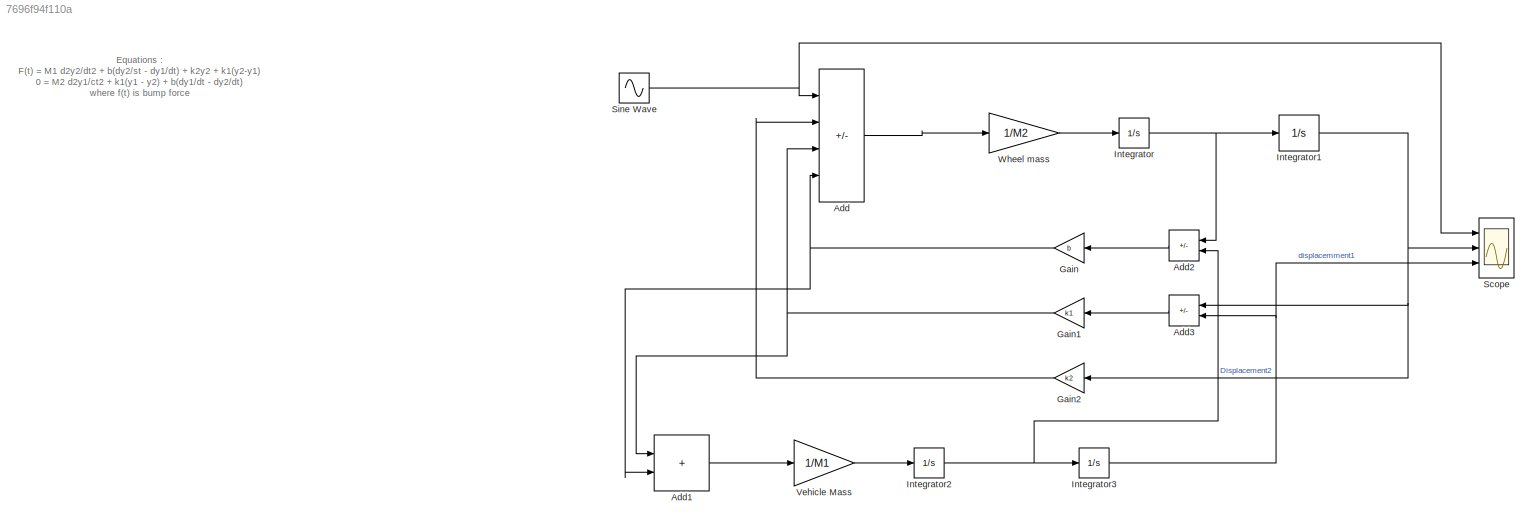
MODEL slx_7696f94f110a
KIND model
CONFIG AbsTol = auto
CONFIG EnableMultiTasking = off
CONFIG FixedStep = auto
CONFIG MaxStep = auto
CONFIG MinStep = auto
CONFIG RelTol = 1e-3
CONFIG SampleTimeConstraint = Unconstrained
CONFIG Solver = VariableStepAuto
CONFIG SolverName = VariableStepAuto
CONFIG StartTime = 0.0
CONFIG StopTime = 100
WORKSPACE source: mxarray member
WORKSPACE M1 = 100
WORKSPACE M2 = 50
WORKSPACE b = 20
WORKSPACE k1 = 500
WORKSPACE k2 = 250
BLOCK [Sum] Add
  IconShape = rectangular
  Inputs = +---
  Ports = [4, 1]
BLOCK [Sum] Add1
  IconShape = rectangular
  Ports = [2, 1]
BLOCK [Sum] Add2
  IconShape = rectangular
  Inputs = +-
  NameLocation = top
  Ports = [2, 1]
BLOCK [Sum] Add3
  IconShape = rectangular
  Inputs = +-
  NameLocation = top
  Ports = [2, 1]
BLOCK [Gain] Gain
  Gain = b
  NameLocation = top
BLOCK [Gain] Gain1
  Gain = k1
  NameLocation = top
BLOCK [Gain] Gain2
  Gain = k2
  NameLocation = top
BLOCK [Integrator] Integrator
  Ports = [1, 1]
BLOCK [Integrator] Integrator1
  Ports = [1, 1]
BLOCK [Integrator] Integrator2
  Ports = [1, 1]
BLOCK [Integrator] Integrator3
  Ports = [1, 1]
BLOCK [Scope] Scope
  Floating = off
  NumInputPorts = 3
  Ports = [3]
  ScopeSpecificationString = Simulink.scopes.TimeScopeBlockCfg('CurrentConfiguration', extmgr.ConfigurationSet(extmgr.Configuration('Core','General UI',true),extmgr.Configuration('Core','Source UI',true),extmgr.Configuration('Sources','WiredSimulink',true),extmgr.Configuration('Visuals','Time Domain',true,'SerializedDisplays',{struct('MinYLimReal','-1.24997','MaxYLimReal','1.24995','YLabelReal','','MinYLimMag','0.00000','MaxY...<+2721ch>
BLOCK [Sin] Sine Wave
  Ports = [0, 1]
  SampleTime = 0
BLOCK [Gain] Vehicle Mass
  Gain = 1/M1
BLOCK [Gain] Wheel mass
  Gain = 1/M2
ANNOTATION (root): Equations : F(t) = M1 d2y2/dt2 + b(dy2/st - dy1/dt) + k2y2 + k1(y2-y1) 0 = M2 d2y1/ct2 + k1(y1 - y2) + b(dy1/dt - dy2/dt) where f(t) is bump force
LINE Add1:1 -> Vehicle Mass:1
LINE Add2:1 -> Gain:1
LINE Add3:1 -> Gain1:1
LINE Add:1 -> Wheel mass:1
NET Gain1:1 -> Add1:1, Add:3
LINE Gain2:1 -> Add:2
NET Gain:1 -> Add1:2, Add:4
NET Integrator1:1 -> Add3:1, Gain2:1, Scope:2
NET Integrator2:1 -> Add2:2, Integrator3:1
NET Integrator3:1 -> Add3:2, Scope:3
NET Integrator:1 -> Add2:1, Integrator1:1
NET Sine Wave:1 -> Add:1, Scope:1
LINE Vehicle Mass:1 -> Integrator2:1
LINE Wheel mass:1 -> Integrator:1
note: NET lines group one-source signal fan-out (src -> all destinations, sorted); 1:1 wires keep LINE
